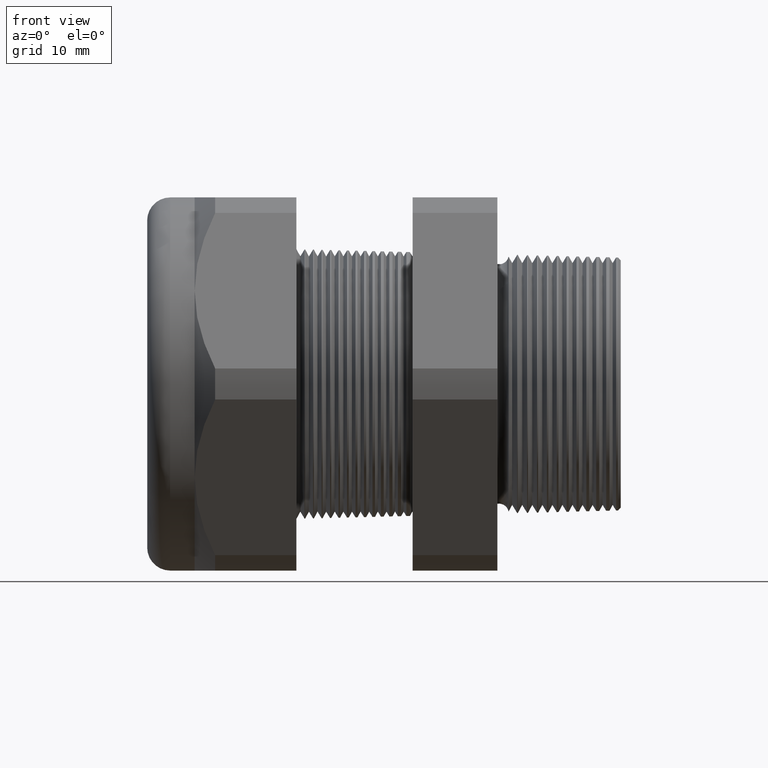
[diagram: clean part render]
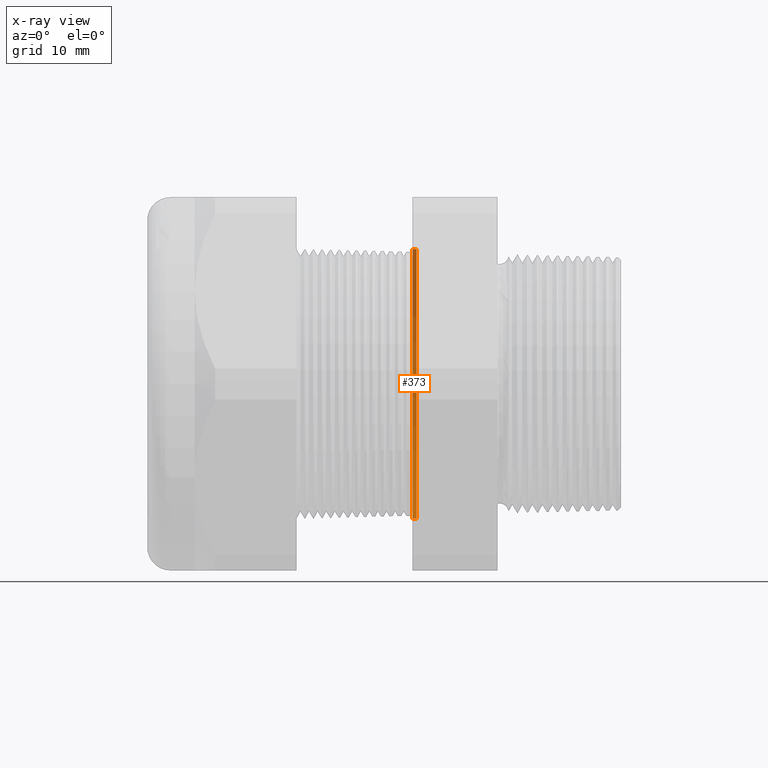
[diagram: x-ray — body ghosted, one internal face saturated and labeled with its STEP entity id]
A machine part, front view, then the same camera in x-ray: the body is ghosted and one INTERNAL B-rep face — a face not visible from any outside direction — is saturated and labeled: STEP entity #373.
In plain terms, the highlighted conical surface has half-angle 1.5 deg.
Its self-contained STEP definition (entity closure, byte-faithful):
#373 = ADVANCED_FACE ( 'NONE', ( #1736 ), #1735, .F. ) ;
#426 = ORIENTED_EDGE ( 'NONE', *, *, #668, .F. ) ;
#427 = ORIENTED_EDGE ( 'NONE', *, *, #1037, .T. ) ;
#428 = ORIENTED_EDGE ( 'NONE', *, *, #1044, .T. ) ;
#429 = ORIENTED_EDGE ( 'NONE', *, *, #5544, .T. ) ;
#512 = VERTEX_POINT ( 'NONE', #1932 ) ;
#587 = VERTEX_POINT ( 'NONE', #2064 ) ;
#589 = VERTEX_POINT ( 'NONE', #2058 ) ;
#595 = VERTEX_POINT ( 'NONE', #2051 ) ;
#668 = EDGE_CURVE ( 'NONE', #587, #595, #2234, .T. ) ;
#1037 = EDGE_CURVE ( 'NONE', #587, #589, #2892, .T. ) ;
#1044 = EDGE_CURVE ( 'NONE', #589, #512, #2938, .T. ) ;
#1731 = DIRECTION ( 'NONE',  ( 0.0000000000000000000, 0.0000000000000000000, 1.000000000000000000 ) ) ;
#1732 = DIRECTION ( 'NONE',  ( -1.000000000000000000, 0.0000000000000000000, 0.0000000000000000000 ) ) ;
#1733 = AXIS2_PLACEMENT_3D ( 'NONE', #1741, #1732, #1731 ) ;
#1735 = CONICAL_SURFACE ( 'NONE', #1733, 0.4692443365923945100, 0.02617993877990797800 ) ;
#1736 = FACE_OUTER_BOUND ( 'NONE', #5690, .T. ) ;
#1741 = CARTESIAN_POINT ( 'NONE',  ( -0.5914573393463203900, 0.0000000000000000000, 0.0000000000000000000 ) ) ;
#1932 = CARTESIAN_POINT ( 'NONE',  ( -0.6052755905511809600, 0.0000000000000000000, 0.4696061802346682100 ) ) ;
#2051 = CARTESIAN_POINT ( 'NONE',  ( -0.6052755905511809600, 5.751017054842014700E-017, -0.4696061802346682100 ) ) ;
#2058 = CARTESIAN_POINT ( 'NONE',  ( -0.5914573393463203900, 5.746585748258992000E-017, 0.4692443365923945100 ) ) ;
#2064 = CARTESIAN_POINT ( 'NONE',  ( -0.5914573393463203900, 0.0000000000000000000, -0.4692443365923945100 ) ) ;
#2231 = DIRECTION ( 'NONE',  ( -0.9996573249755573700, 3.205751595667405400E-018, -0.02617694830786618600 ) ) ;
#2232 = VECTOR ( 'NONE', #2231, 39.37007874015748100 ) ;
#2233 = CARTESIAN_POINT ( 'NONE',  ( -0.5914573393463203900, 5.746585748258992000E-017, -0.4692443365923945100 ) ) ;
#2234 = LINE ( 'NONE', #2233, #2232 ) ;
#2888 = DIRECTION ( 'NONE',  ( 0.0000000000000000000, 0.0000000000000000000, -1.000000000000000000 ) ) ;
#2889 = DIRECTION ( 'NONE',  ( 1.000000000000000000, 0.0000000000000000000, 0.0000000000000000000 ) ) ;
#2890 = CARTESIAN_POINT ( 'NONE',  ( -0.5914573393463203900, 0.0000000000000000000, 0.0000000000000000000 ) ) ;
#2891 = AXIS2_PLACEMENT_3D ( 'NONE', #2890, #2889, #2888 ) ;
#2892 = CIRCLE ( 'NONE', #2891, 0.4692443365923945100 ) ;
#2935 = DIRECTION ( 'NONE',  ( -0.9996573249755573700, 0.0000000000000000000, 0.02617694830786618600 ) ) ;
#2936 = VECTOR ( 'NONE', #2935, 39.37007874015748100 ) ;
#2937 = CARTESIAN_POINT ( 'NONE',  ( -0.5914573393463203900, 0.0000000000000000000, 0.4692443365923945100 ) ) ;
#2938 = LINE ( 'NONE', #2937, #2936 ) ;
#4757 = DIRECTION ( 'NONE',  ( 0.0000000000000000000, 0.0000000000000000000, 1.000000000000000000 ) ) ;
#4758 = DIRECTION ( 'NONE',  ( -1.000000000000000000, 0.0000000000000000000, 0.0000000000000000000 ) ) ;
#4759 = CARTESIAN_POINT ( 'NONE',  ( -0.6052755905511809600, 0.0000000000000000000, 0.0000000000000000000 ) ) ;
#4760 = AXIS2_PLACEMENT_3D ( 'NONE', #4759, #4758, #4757 ) ;
#4761 = CIRCLE ( 'NONE', #4760, 0.4696061802346682700 ) ;
#5544 = EDGE_CURVE ( 'NONE', #512, #595, #4761, .T. ) ;
#5690 = EDGE_LOOP ( 'NONE', ( #426, #427, #428, #429 ) ) ;